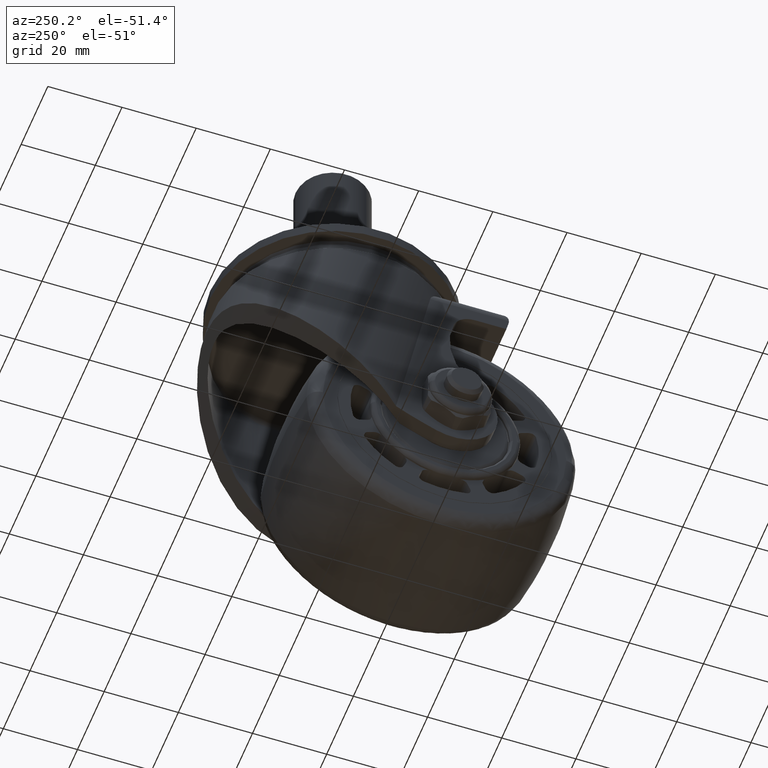
[diagram: clean part render]
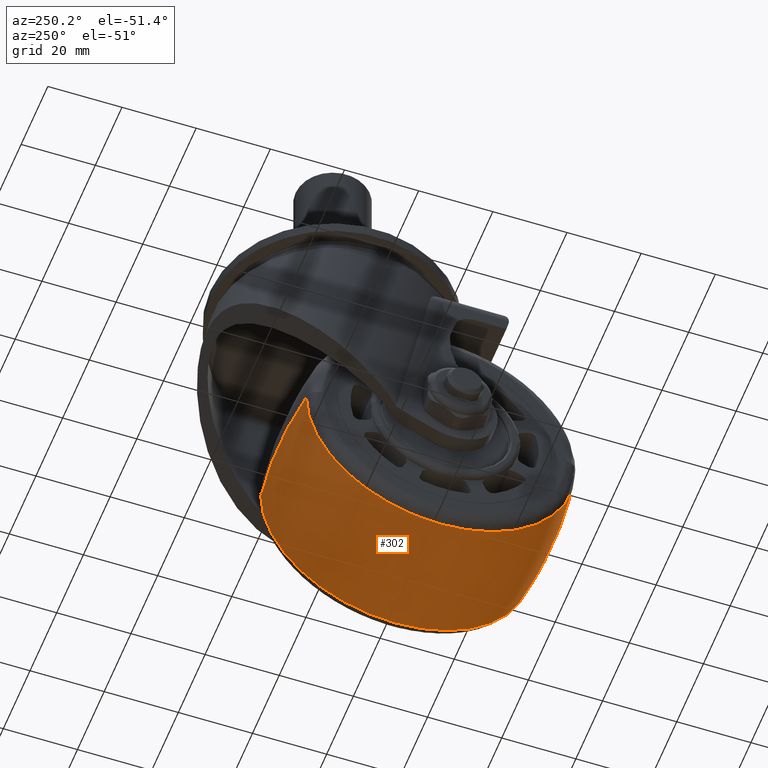
[diagram: same view with one face highlighted and labeled with its STEP entity id]
A machine part, auxiliary view. The second image highlights one B-rep face of the part: STEP entity #302.
In plain terms, the highlighted face is a freeform B-spline surface patch.
Its self-contained STEP definition (entity closure, byte-faithful):
#302=ADVANCED_FACE('',(#2254),#2253,.T.);
#2253=( BOUNDED_SURFACE() B_SPLINE_SURFACE( 2,2,((#3946,#3947,#3948,#3949,#3950),(#3951,#3952,#3953,#3954,#3955),(#3956,#3957,#3958,#3959,#3960)), .UNSPECIFIED.,.F.,.F.,.F.) B_SPLINE_SURFACE_WITH_KNOTS((3,3),(3,2,3),(-1.48309417693E-01,1.48309417693E-01),(3.14159265359E+00,4.71238898038E+00,6.28318530718E+00), .UNSPECIFIED. ) GEOMETRIC_REPRESENTATION_ITEM() RATIONAL_B_SPLINE_SURFACE(((1.00000000000E+00,7.07106781187E-01,1.00000000000E+00,7.07106781187E-01,1.00000000000E+00),(9.89022302291E-01,6.99344376695E-01,9.89022302291E-01,6.99344376695E-01,9.89022302291E-01),(1.00000000000E+00,7.07106781187E-01,1.00000000000E+00,7.07106781187E-01,1.00000000000E+00))) REPRESENTATION_ITEM('') SURFACE() );
#2254=FACE_OUTER_BOUND('',#3961,.T.);
#3946=CARTESIAN_POINT('',(-1.70499600955E+01,-4.43715813926E-15,-3.62333424567E+01));
#3947=CARTESIAN_POINT('',(-1.70499600955E+01,-3.62333424567E+01,-3.62333424567E+01));
#3948=CARTESIAN_POINT('',(-1.70499600955E+01,-3.62333424567E+01,4.43715813926E-15));
#3949=CARTESIAN_POINT('',(-1.70499600955E+01,-3.62333424567E+01,3.62333424567E+01));
#3950=CARTESIAN_POINT('',(-1.70499600955E+01,4.43715813926E-15,3.62333424567E+01));
#3951=CARTESIAN_POINT('',(0.00000000000E+00,-4.74911119957E-15,-3.87807166339E+01));
#3952=CARTESIAN_POINT('',(0.00000000000E+00,-3.87807166339E+01,-3.87807166339E+01));
#3953=CARTESIAN_POINT('',(0.00000000000E+00,-3.87807166339E+01,4.74911119957E-15));
#3954=CARTESIAN_POINT('',(0.00000000000E+00,-3.87807166339E+01,3.87807166339E+01));
#3955=CARTESIAN_POINT('',(0.00000000000E+00,4.74911119957E-15,3.87807166339E+01));
#3956=CARTESIAN_POINT('',(1.70499600955E+01,-4.43715813926E-15,-3.62333424567E+01));
#3957=CARTESIAN_POINT('',(1.70499600955E+01,-3.62333424567E+01,-3.62333424567E+01));
#3958=CARTESIAN_POINT('',(1.70499600955E+01,-3.62333424567E+01,4.43715813926E-15));
#3959=CARTESIAN_POINT('',(1.70499600955E+01,-3.62333424567E+01,3.62333424567E+01));
#3960=CARTESIAN_POINT('',(1.70499600955E+01,4.43715813926E-15,3.62333424567E+01));
#3961=EDGE_LOOP('',(#5158,#5159,#5160,#5161));
#5158=ORIENTED_EDGE('',*,*,#5748,.F.);
#5159=ORIENTED_EDGE('',*,*,#5745,.F.);
#5160=ORIENTED_EDGE('',*,*,#5741,.T.);
#5161=ORIENTED_EDGE('',*,*,#5747,.T.);
#5741=EDGE_CURVE('',#9133,#9134,#9135,.T.);
#5745=EDGE_CURVE('',#9133,#9159,#9160,.T.);
#5747=EDGE_CURVE('',#9134,#9166,#9173,.T.);
#5748=EDGE_CURVE('',#9159,#9166,#9179,.T.);
#9133=VERTEX_POINT('',#11719);
#9134=VERTEX_POINT('',#11720);
#9135=CIRCLE('',#11724,3.62333424567E+01);
#9159=VERTEX_POINT('',#11737);
#9160=(BOUNDED_CURVE() B_SPLINE_CURVE(2,(#11738,#11739,#11740),.UNSPECIFIED.,.F.,.F.) B_SPLINE_CURVE_WITH_KNOTS((3,3),(-1.48309417693E-01,1.48309417693E-01),.UNSPECIFIED.) CURVE() GEOMETRIC_REPRESENTATION_ITEM() RATIONAL_B_SPLINE_CURVE((1.00000000000E+00,9.89022302291E-01,1.00000000000E+00)) REPRESENTATION_ITEM('') );
#9166=VERTEX_POINT('',#11741);
#9173=(BOUNDED_CURVE() B_SPLINE_CURVE(2,(#11746,#11747,#11748),.UNSPECIFIED.,.F.,.F.) B_SPLINE_CURVE_WITH_KNOTS((3,3),(-1.48309417693E-01,1.48309417693E-01),.UNSPECIFIED.) CURVE() GEOMETRIC_REPRESENTATION_ITEM() RATIONAL_B_SPLINE_CURVE((1.00000000000E+00,9.89022302291E-01,1.00000000000E+00)) REPRESENTATION_ITEM('') );
#9179=CIRCLE('',#11752,3.62333424567E+01);
#11719=CARTESIAN_POINT('',(-1.70499600955E+01,2.36847578587E-15,3.62333424567E+01));
#11720=CARTESIAN_POINT('',(-1.70499600955E+01,0.00000000000E+00,-3.62333424567E+01));
#11721=CARTESIAN_POINT('',(-1.70499600955E+01,0.00000000000E+00,0.00000000000E+00));
#11722=DIRECTION('',(1.00000000000E+00,0.00000000000E+00,0.00000000000E+00));
#11723=DIRECTION('',(0.00000000000E+00,-1.22460635382E-16,-1.00000000000E+00));
#11724=AXIS2_PLACEMENT_3D('',#11721,#11722,#11723);
#11737=CARTESIAN_POINT('',(1.70499600955E+01,2.36847578587E-15,3.62333424567E+01));
#11738=CARTESIAN_POINT('',(-1.70499600955E+01,4.43715813926E-15,3.62333424567E+01));
#11739=CARTESIAN_POINT('',(0.00000000000E+00,4.74911119957E-15,3.87807166339E+01));
#11740=CARTESIAN_POINT('',(1.70499600955E+01,4.43715813926E-15,3.62333424567E+01));
#11741=CARTESIAN_POINT('',(1.70499600955E+01,0.00000000000E+00,-3.62333424567E+01));
#11746=CARTESIAN_POINT('',(-1.70499600955E+01,-4.43715813926E-15,-3.62333424567E+01));
#11747=CARTESIAN_POINT('',(0.00000000000E+00,-4.74911119957E-15,-3.87807166339E+01));
#11748=CARTESIAN_POINT('',(1.70499600955E+01,-4.43715813926E-15,-3.62333424567E+01));
#11749=CARTESIAN_POINT('',(1.70499600955E+01,0.00000000000E+00,0.00000000000E+00));
#11750=DIRECTION('',(1.00000000000E+00,0.00000000000E+00,0.00000000000E+00));
#11751=DIRECTION('',(0.00000000000E+00,-1.22460635382E-16,-1.00000000000E+00));
#11752=AXIS2_PLACEMENT_3D('',#11749,#11750,#11751);